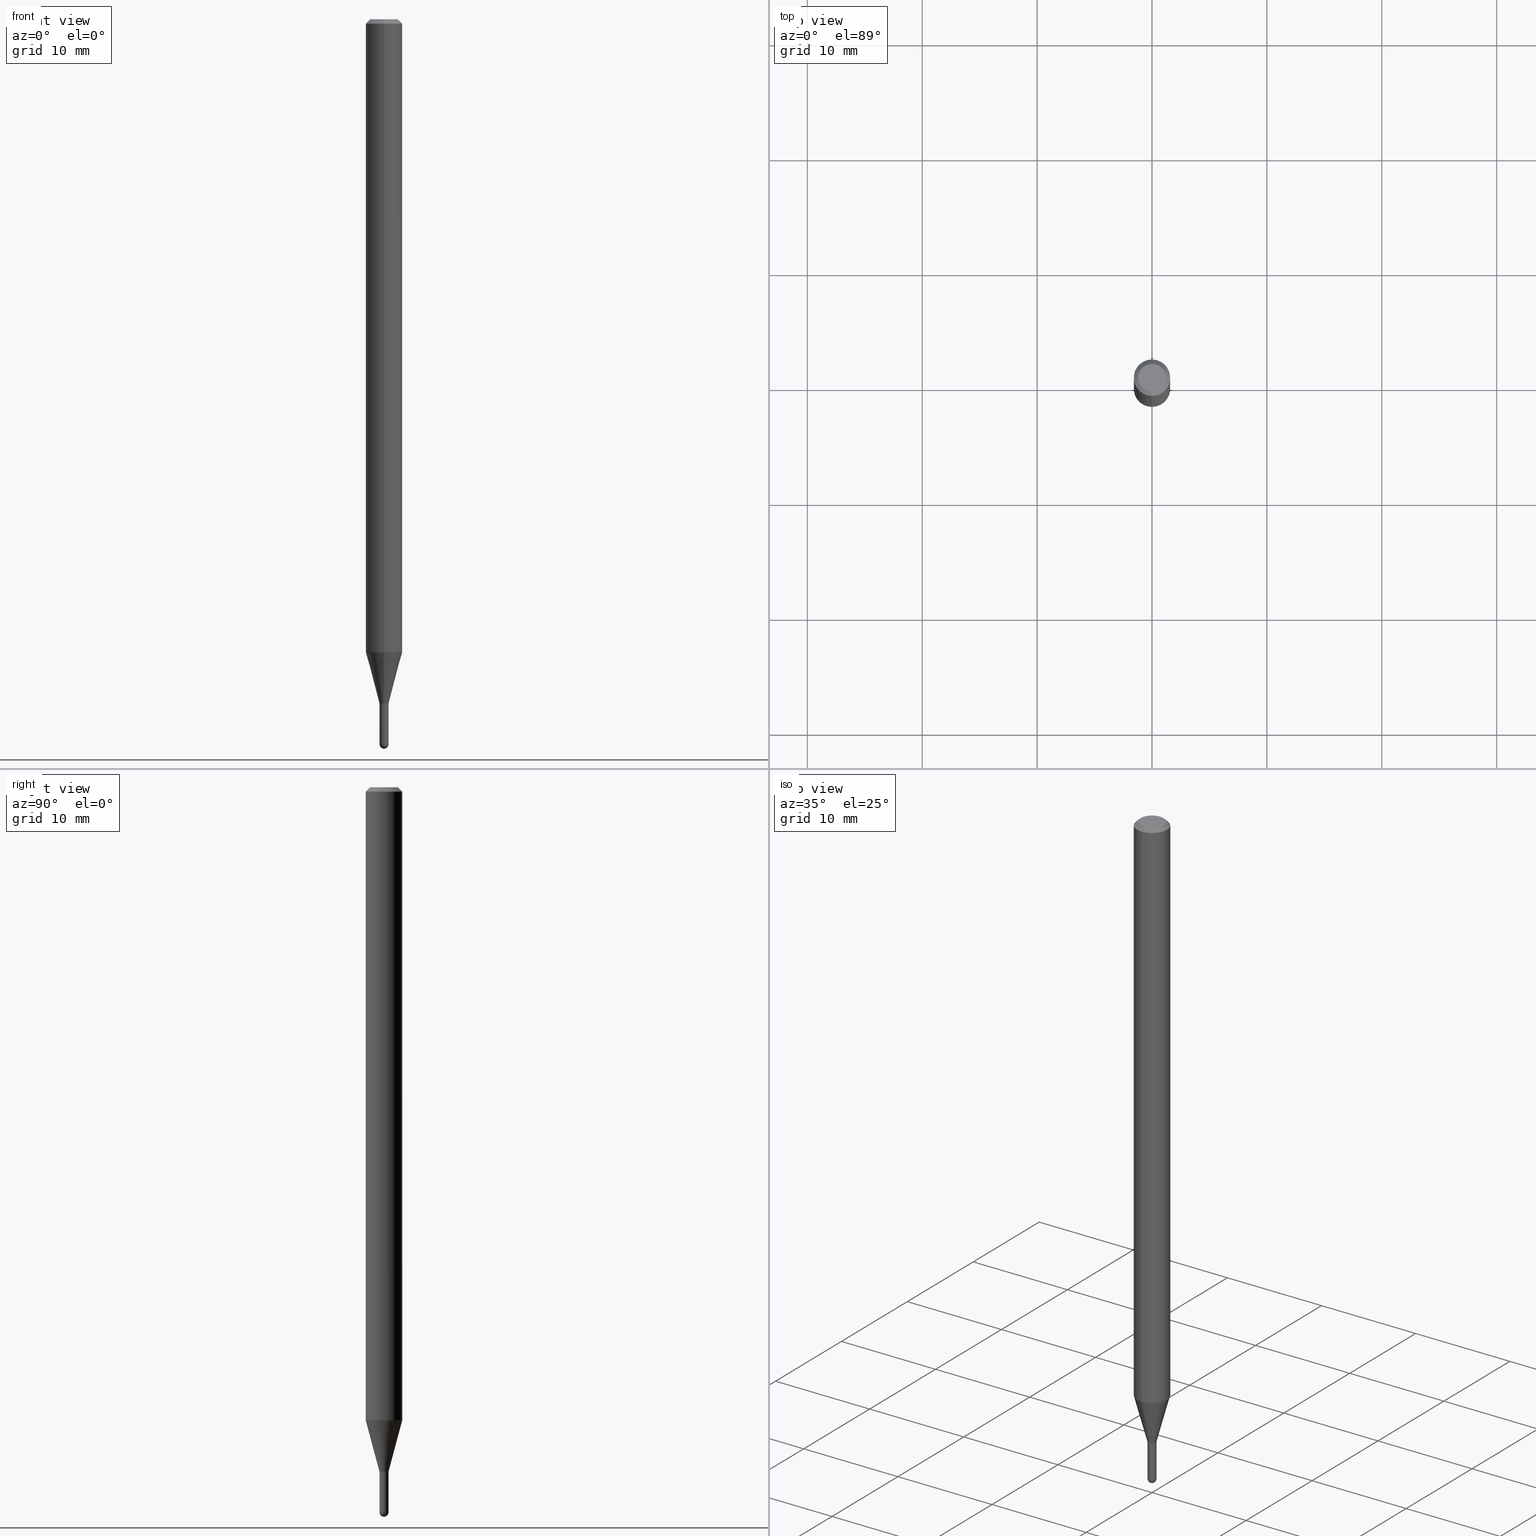
[diagram: canonical four-view strip — front | top / right | iso, engineering-drawing reading convention]
A machine part, canonical four-view strip (front | top / right | iso — engineering-drawing reading convention). The complete STEP part file that produces these views, byte-faithful:
ISO-10303-21;
HEADER;
FILE_DESCRIPTION (( 'STEP AP203' ),
    '1' );
FILE_NAME ('01504.STEP',
    '2024-03-07T19:35:42',
    ( '' ),
    ( '' ),
    'SwSTEP 2.0',
    'SolidWorks 2023',
    '' );
FILE_SCHEMA (( 'CONFIG_CONTROL_DESIGN' ));
ENDSEC;

DATA;
#1 = CLOSED_SHELL ( 'NONE', ( #121, #383, #426, #209, #110, #149, #332, #140, #301, #115, #364, #93 ) ) ;
#2 = DIRECTION ( 'NONE',  ( -6.982962677686265922E-15, -1.000000000000000000, 0.000000000000000000 ) ) ;
#3 = DIRECTION ( 'NONE',  ( -2.445469388235828600E-29, 3.491480505313426266E-15, 1.000000000000000000 ) ) ;
#4 = DIRECTION ( 'NONE',  ( 4.937700262164548042E-15, 0.7071067811865451302, -0.7071067811865499042 ) ) ;
#5 = VERTEX_POINT ( 'NONE', #294 ) ;
#6 = DIRECTION ( 'NONE',  ( -2.445469388235828600E-29, 3.491480505313426266E-15, 1.000000000000000000 ) ) ;
#7 = VECTOR ( 'NONE', #395, 39.37007874015748143 ) ;
#8 = CYLINDRICAL_SURFACE ( 'NONE', #306, 0.06250000000000000000 ) ;
#9 = ORIENTED_EDGE ( 'NONE', *, *, #347, .T. ) ;
#10 = COORDINATED_UNIVERSAL_TIME_OFFSET ( 5, 0, .BEHIND. ) ;
#11 = ORIENTED_EDGE ( 'NONE', *, *, #88, .T. ) ;
#12 = MANIFOLD_SOLID_BREP ( 'Body-Move/Copy2[1]', #277 ) ;
#13 = CC_DESIGN_APPROVAL ( #495, ( #64 ) ) ;
#14 = ORIENTED_EDGE ( 'NONE', *, *, #377, .T. ) ;
#15 = ADVANCED_FACE ( 'NONE', ( #419 ), #254, .T. ) ;
#16 = CIRCLE ( 'NONE', #206, 0.01549999999999999989 ) ;
#17 = PERSON_AND_ORGANIZATION ( #235, #80 ) ;
#18 = AXIS2_PLACEMENT_3D ( 'NONE', #236, #94, #242 ) ;
#19 = ORIENTED_EDGE ( 'NONE', *, *, #446, .F. ) ;
#20 = APPROVAL_DATE_TIME ( #141, #238 ) ;
#21 = DIRECTION ( 'NONE',  ( -2.445468806185136597E-29, 3.491481338843145583E-15, 1.000000000000000000 ) ) ;
#22 = PERSON_AND_ORGANIZATION_ROLE ( 'design_supplier' ) ;
#23 = EDGE_LOOP ( 'NONE', ( #66, #447 ) ) ;
#24 = EDGE_CURVE ( 'NONE', #5, #57, #463, .T. ) ;
#25 = SECURITY_CLASSIFICATION_LEVEL ( 'unclassified' ) ;
#26 = CONICAL_SURFACE ( 'NONE', #45, 0.01549999999999965121, 0.2617993877991576235 ) ;
#27 = CARTESIAN_POINT ( 'NONE',  ( 5.734625715413019082E-29, -8.187521784959985664E-15, -2.345000000000000195 ) ) ;
#28 = DATE_AND_TIME ( #299, #220 ) ;
#29 = DIRECTION ( 'NONE',  ( -6.982962677686265922E-15, -1.000000000000000000, 0.000000000000000000 ) ) ;
#30 = DIRECTION ( 'NONE',  ( -7.105427357601001070E-15, -1.000000000000000000, 0.000000000000000000 ) ) ;
#31 = DIRECTION ( 'NONE',  ( -6.982962677686265922E-15, -1.000000000000000000, 3.491480505313426266E-15 ) ) ;
#32 = FACE_OUTER_BOUND ( 'NONE', #454, .T. ) ;
#33 = CARTESIAN_POINT ( 'NONE',  ( -3.773273898774340269E-16, -0.04749999999999999362, 1.569849648178949925E-16 ) ) ;
#34 = VECTOR ( 'NONE', #300, 39.37007874015748143 ) ;
#35 = LENGTH_MEASURE_WITH_UNIT ( LENGTH_MEASURE( 0.02539999999999999897 ), #272 );
#36 = DIRECTION ( 'NONE',  ( -2.445469388235828600E-29, 3.491480505313426266E-15, 1.000000000000000000 ) ) ;
#37 = CARTESIAN_POINT ( 'NONE',  ( 0.01549999999999999989, -8.295759661091313125E-15, -2.345000000000000195 ) ) ;
#38 = DIRECTION ( 'NONE',  ( 1.000000000000000000, -6.982962677686299843E-15, 0.000000000000000000 ) ) ;
#39 = ORIENTED_EDGE ( 'NONE', *, *, #67, .T. ) ;
#40 = FACE_OUTER_BOUND ( 'NONE', #104, .T. ) ;
#41 = DIRECTION ( 'NONE',  ( 5.024295867790934632E-15, 0.7071067811869542474, 0.7071067811861405650 ) ) ;
#42 = AXIS2_PLACEMENT_3D ( 'NONE', #285, #232, #322 ) ;
#43 = CIRCLE ( 'NONE', #111, 0.06250000000000000000 ) ;
#44 = ORIENTED_EDGE ( 'NONE', *, *, #223, .T. ) ;
#45 = AXIS2_PLACEMENT_3D ( 'NONE', #390, #190, #71 ) ;
#46 = LINE ( 'NONE', #92, #505 ) ;
#47 = EDGE_CURVE ( 'NONE', #172, #101, #433, .T. ) ;
#48 = MECHANICAL_CONTEXT ( 'NONE', #477, 'mechanical' ) ;
#49 = DIRECTION ( 'NONE',  ( -2.445469388235828600E-29, 3.491480505313426266E-15, 1.000000000000000000 ) ) ;
#50 = ORIENTED_EDGE ( 'NONE', *, *, #293, .T. ) ;
#51 = EDGE_CURVE ( 'NONE', #138, #422, #381, .T. ) ;
#52 = DIRECTION ( 'NONE',  ( 0.000000000000000000, 0.000000000000000000, 1.000000000000000000 ) ) ;
#53 = DIRECTION ( 'NONE',  ( -2.445469388235828600E-29, 3.491480505313426266E-15, 1.000000000000000000 ) ) ;
#54 = AXIS2_PLACEMENT_3D ( 'NONE', #394, #229, #30 ) ;
#55 = AXIS2_PLACEMENT_3D ( 'NONE', #215, #21, #180 ) ;
#56 = APPROVAL_DATE_TIME ( #412, #495 ) ;
#57 = VERTEX_POINT ( 'NONE', #468 ) ;
#58 = DATE_AND_TIME ( #173, #153 ) ;
#59 = ORIENTED_EDGE ( 'NONE', *, *, #439, .F. ) ;
#60 = CC_DESIGN_PERSON_AND_ORGANIZATION_ASSIGNMENT ( #375, #423, ( #72 ) ) ;
#61 = VERTEX_POINT ( 'NONE', #33 ) ;
#62 = COORDINATED_UNIVERSAL_TIME_OFFSET ( 5, 0, .BEHIND. ) ;
#63 = ORIENTED_EDGE ( 'NONE', *, *, #51, .F. ) ;
#64 = PRODUCT_DEFINITION ( 'UNKNOWN', '', #72, #479 ) ;
#65 = APPROVAL_ROLE ( '' ) ;
#66 = ORIENTED_EDGE ( 'NONE', *, *, #47, .F. ) ;
#67 = EDGE_CURVE ( 'NONE', #369, #201, #120, .T. ) ;
#68 = PLANE ( 'NONE',  #450 ) ;
#69 = VECTOR ( 'NONE', #164, 39.37007874015748854 ) ;
#70 = CONICAL_SURFACE ( 'NONE', #355, 0.01499999999999999944, 0.7853981633980202659 ) ;
#71 = DIRECTION ( 'NONE',  ( -6.982962677686265922E-15, -1.000000000000000000, 0.000000000000000000 ) ) ;
#72 = PRODUCT_DEFINITION_FORMATION_WITH_SPECIFIED_SOURCE ( 'ANY', '', #385, .NOT_KNOWN. ) ;
#73 = EDGE_CURVE ( 'NONE', #422, #165, #208, .T. ) ;
#74 = DIRECTION ( 'NONE',  ( -2.445469388235828600E-29, 3.491480505313426266E-15, 1.000000000000000000 ) ) ;
#75 = DIRECTION ( 'NONE',  ( -2.445469388235828600E-29, 3.491480505313426266E-15, 1.000000000000000000 ) ) ;
#76 = CARTESIAN_POINT ( 'NONE',  ( 3.668204082353745160E-31, -5.237220757970142554E-17, -0.01500000000000000812 ) ) ;
#77 = AXIS2_PLACEMENT_3D ( 'NONE', #469, #85, #192 ) ;
#78 = DIRECTION ( 'NONE',  ( -2.445469388235828600E-29, 3.491480505313426266E-15, 1.000000000000000000 ) ) ;
#79 = DIRECTION ( 'NONE',  ( -2.445468806185136597E-29, 3.491481338843145583E-15, 1.000000000000000000 ) ) ;
#80 = ORGANIZATION ( 'UNSPECIFIED', 'UNSPECIFIED', '' ) ;
#81 = CARTESIAN_POINT ( 'NONE',  ( 5.734625715413017961E-29, -8.187521784959985664E-15, -2.345000000000000195 ) ) ;
#82 = CARTESIAN_POINT ( 'NONE',  ( 4.440892098501160615E-16, 0.06249999999999995837, -0.01500000000000022669 ) ) ;
#83 = ORIENTED_EDGE ( 'NONE', *, *, #329, .T. ) ;
#84 = CC_DESIGN_DATE_AND_TIME_ASSIGNMENT ( #58, #211, ( #64 ) ) ;
#85 = DIRECTION ( 'NONE',  ( 2.445469388235828600E-29, -3.491480505313426266E-15, -1.000000000000000000 ) ) ;
#86 = DIRECTION ( 'NONE',  ( -2.445469388235828600E-29, 3.491480505313426266E-15, 1.000000000000000000 ) ) ;
#87 = ORIENTED_EDGE ( 'NONE', *, *, #264, .F. ) ;
#88 = EDGE_CURVE ( 'NONE', #5, #482, #392, .T. ) ;
#89 = LINE ( 'NONE', #245, #331 ) ;
#90 = CIRCLE ( 'NONE', #128, 0.01550000000000019765 ) ;
#91 = CIRCLE ( 'NONE', #103, 0.01550000000000000336 ) ;
#92 = CARTESIAN_POINT ( 'NONE',  ( -1.082359215041365986E-16, -0.01549999999999992530, 5.411794783235784596E-17 ) ) ;
#93 = ADVANCED_FACE ( 'NONE', ( #430 ), #219, .F. ) ;
#94 = DIRECTION ( 'NONE',  ( -2.445469388235828600E-29, 3.491480505313426266E-15, 1.000000000000000000 ) ) ;
#95 = CIRCLE ( 'NONE', #449, 0.06250000000000000000 ) ;
#96 = ORIENTED_EDGE ( 'NONE', *, *, #347, .F. ) ;
#97 = VECTOR ( 'NONE', #41, 39.37007874015748854 ) ;
#98 = VERTEX_POINT ( 'NONE', #186 ) ;
#99 = EDGE_CURVE ( 'NONE', #165, #369, #352, .T. ) ;
#100 = DATE_TIME_ROLE ( 'classification_date' ) ;
#101 = VERTEX_POINT ( 'NONE', #384 ) ;
#102 = EDGE_LOOP ( 'NONE', ( #489, #251, #330, #363 ) ) ;
#103 = AXIS2_PLACEMENT_3D ( 'NONE', #157, #440, #38 ) ;
#104 = EDGE_LOOP ( 'NONE', ( #213, #244, #451, #420 ) ) ;
#105 = APPROVAL_DATE_TIME ( #28, #499 ) ;
#106 = CARTESIAN_POINT ( 'NONE',  ( 6.075767248966972494E-29, -8.674585386355795965E-15, -2.484500000000000153 ) ) ;
#107 = AXIS2_PLACEMENT_3D ( 'NONE', #266, #189, #122 ) ;
#108 = APPROVAL_ROLE ( '' ) ;
#109 = DIRECTION ( 'NONE',  ( -6.982962677686265922E-15, -1.000000000000000000, 3.491480505313426266E-15 ) ) ;
#110 = ADVANCED_FACE ( 'NONE', ( #457 ), #413, .T. ) ;
#111 = AXIS2_PLACEMENT_3D ( 'NONE', #481, #203, #168 ) ;
#112 = DIRECTION ( 'NONE',  ( 2.438088387897960049E-29, -3.491481338843145188E-15, -1.000000000000000000 ) ) ;
#113 = CARTESIAN_POINT ( 'NONE',  ( 6.074441741218743853E-29, -8.676483588894474032E-15, -2.484500000000000153 ) ) ;
#114 = CIRCLE ( 'NONE', #310, 0.04749999999999999362 ) ;
#115 = ADVANCED_FACE ( 'NONE', ( #258 ), #68, .F. ) ;
#116 = CARTESIAN_POINT ( 'NONE',  ( -1.082359215040773354E-16, -0.01550000000000783910, -2.345000000000000195 ) ) ;
#117 = CARTESIAN_POINT ( 'NONE',  ( 5.734625715413017961E-29, -8.187521784959985664E-15, -2.345000000000000195 ) ) ;
#118 = CARTESIAN_POINT ( 'NONE',  ( 1.101341240428149734E-16, 0.01549999999999992530, -5.411794783235784596E-17 ) ) ;
#119 = CARTESIAN_POINT ( 'NONE',  ( 5.733402980718901253E-29, -8.185776044707329632E-15, -2.344500000000000473 ) ) ;
#120 = CIRCLE ( 'NONE', #161, 0.01549999999999999989 ) ;
#121 = ADVANCED_FACE ( 'NONE', ( #185 ), #340, .F. ) ;
#122 = DIRECTION ( 'NONE',  ( -6.982962677686265922E-15, -1.000000000000000000, 0.000000000000000000 ) ) ;
#123 = CARTESIAN_POINT ( 'NONE',  ( 5.734624350504145902E-29, -8.187523739587176748E-15, -2.345000000000000195 ) ) ;
#124 = APPROVAL_STATUS ( 'not_yet_approved' ) ;
#125 = DIRECTION ( 'NONE',  ( 1.839019923739650408E-15, 0.2588190451025320082, 0.9659258262890650926 ) ) ;
#126 = VERTEX_POINT ( 'NONE', #152 ) ;
#127 = CARTESIAN_POINT ( 'NONE',  ( 3.316907271900976096E-16, 0.04749999999999999362, -1.702755035946341149E-16 ) ) ;
#128 = AXIS2_PLACEMENT_3D ( 'NONE', #119, #86, #287 ) ;
#129 = ORIENTED_EDGE ( 'NONE', *, *, #223, .F. ) ;
#130 = AXIS2_PLACEMENT_3D ( 'NONE', #250, #52, #405 ) ;
#131 = APPLICATION_PROTOCOL_DEFINITION ( 'international standard', 'config_control_design', 1994, #477 ) ;
#132 = FACE_OUTER_BOUND ( 'NONE', #367, .T. ) ;
#133 = COORDINATED_UNIVERSAL_TIME_OFFSET ( 5, 0, .BEHIND. ) ;
#134 = DIRECTION ( 'NONE',  ( -2.445469388235828600E-29, 3.491480505313426266E-15, 1.000000000000000000 ) ) ;
#135 = PERSON_AND_ORGANIZATION ( #235, #80 ) ;
#136 = ORIENTED_EDGE ( 'NONE', *, *, #99, .T. ) ;
#137 = CC_DESIGN_PERSON_AND_ORGANIZATION_ASSIGNMENT ( #492, #184, ( #319 ) ) ;
#138 = VERTEX_POINT ( 'NONE', #261 ) ;
#139 = LOCAL_TIME ( 14, 35, 42.00000000000000000, #342 ) ;
#140 = ADVANCED_FACE ( 'NONE', ( #148 ), #442, .T. ) ;
#141 = DATE_AND_TIME ( #334, #302 ) ;
#142 = EDGE_LOOP ( 'NONE', ( #456, #19, #144, #378 ) ) ;
#143 = ADVANCED_FACE ( 'NONE', ( #465 ), #305, .T. ) ;
#144 = ORIENTED_EDGE ( 'NONE', *, *, #176, .T. ) ;
#145 = DIRECTION ( 'NONE',  ( 1.000000000000000000, -6.982962677686299843E-15, 0.000000000000000000 ) ) ;
#146 = CARTESIAN_POINT ( 'NONE',  ( 5.734624350504145902E-29, -8.187523739587176748E-15, -2.345000000000000195 ) ) ;
#147 = DATE_AND_TIME ( #500, #139 ) ;
#148 = FACE_OUTER_BOUND ( 'NONE', #493, .T. ) ;
#149 = ADVANCED_FACE ( 'NONE', ( #508 ), #26, .T. ) ;
#150 = DIRECTION ( 'NONE',  ( -1.807323732225379838E-15, -0.2588190451025252914, 0.9659258262890670910 ) ) ;
#151 = AXIS2_PLACEMENT_3D ( 'NONE', #193, #343, #504 ) ;
#152 = CARTESIAN_POINT ( 'NONE',  ( 6.113009261588727732E-29, -8.729652448377203187E-15, -2.500000000000000000 ) ) ;
#153 = LOCAL_TIME ( 14, 35, 42.00000000000000000, #10 ) ;
#154 = CC_DESIGN_PERSON_AND_ORGANIZATION_ASSIGNMENT ( #135, #162, ( #385 ) ) ;
#155 = CARTESIAN_POINT ( 'NONE',  ( 6.074441741218743853E-29, -8.676483588894474032E-15, -2.484500000000000153 ) ) ;
#156 = DIRECTION ( 'NONE',  ( -6.982962677686266711E-15, -1.000000000000000000, 0.000000000000000000 ) ) ;
#157 = CARTESIAN_POINT ( 'NONE',  ( 6.075767248966972494E-29, -8.674585386355795965E-15, -2.484500000000000153 ) ) ;
#158 = CIRCLE ( 'NONE', #107, 0.01549999999999965121 ) ;
#159 = DIRECTION ( 'NONE',  ( -4.851104656540964275E-15, -0.7071067811865500152, -0.7071067811865450192 ) ) ;
#160 = CYLINDRICAL_SURFACE ( 'NONE', #472, 0.01550000000000000162 ) ;
#161 = AXIS2_PLACEMENT_3D ( 'NONE', #146, #79, #230 ) ;
#162 = PERSON_AND_ORGANIZATION_ROLE ( 'design_owner' ) ;
#163 = APPROVAL_PERSON_ORGANIZATION ( #17, #238, #65 ) ;
#164 = DIRECTION ( 'NONE',  ( -4.937700262167370586E-15, -0.7071067811869493624, 0.7071067811861454500 ) ) ;
#165 = VERTEX_POINT ( 'NONE', #387 ) ;
#166 = CARTESIAN_POINT ( 'NONE',  ( 5.305674763166256692E-29, -7.575093800905100250E-15, -2.169593612044267594 ) ) ;
#167 = ORIENTED_EDGE ( 'NONE', *, *, #51, .T. ) ;
#168 = DIRECTION ( 'NONE',  ( -6.982962677686265922E-15, -1.000000000000000000, 3.483106191921935554E-15 ) ) ;
#169 = ORIENTED_EDGE ( 'NONE', *, *, #67, .F. ) ;
#170 = EDGE_CURVE ( 'NONE', #233, #482, #200, .T. ) ;
#171 = DIRECTION ( 'NONE',  ( -2.445468806185136597E-29, 3.491481338843145583E-15, 1.000000000000000000 ) ) ;
#172 = VERTEX_POINT ( 'NONE', #205 ) ;
#173 = CALENDAR_DATE ( 2024, 7, 3 ) ;
#174 = ORIENTED_EDGE ( 'NONE', *, *, #199, .T. ) ;
#175 = ORIENTED_EDGE ( 'NONE', *, *, #176, .F. ) ;
#176 = EDGE_CURVE ( 'NONE', #57, #233, #46, .T. ) ;
#177 = AXIS2_PLACEMENT_3D ( 'NONE', #155, #348, #351 ) ;
#178 = APPROVAL_STATUS ( 'not_yet_approved' ) ;
#179 = ORIENTED_EDGE ( 'NONE', *, *, #227, .T. ) ;
#180 = DIRECTION ( 'NONE',  ( 1.000000000000000000, -6.982962677686266711E-15, 4.876176775795935232E-29 ) ) ;
#181 = APPROVAL_PERSON_ORGANIZATION ( #438, #495, #204 ) ;
#182 = ORIENTED_EDGE ( 'NONE', *, *, #359, .T. ) ;
#183 = AXIS2_PLACEMENT_3D ( 'NONE', #127, #445, #195 ) ;
#184 = PERSON_AND_ORGANIZATION_ROLE ( 'classification_officer' ) ;
#185 = FACE_OUTER_BOUND ( 'NONE', #255, .T. ) ;
#186 = CARTESIAN_POINT ( 'NONE',  ( -4.364351673553912750E-16, -0.06250000000000005551, -0.01499999999999979128 ) ) ;
#187 = CARTESIAN_POINT ( 'NONE',  ( 2.166773715445121062E-46, -3.093577136273123106E-32, -8.860359184492759044E-18 ) ) ;
#188 = DIRECTION ( 'NONE',  ( -2.445469388235828600E-29, 3.491480505313426266E-15, 1.000000000000000000 ) ) ;
#189 = DIRECTION ( 'NONE',  ( -2.445469388235828600E-29, 3.491480505313426266E-15, 1.000000000000000000 ) ) ;
#190 = DIRECTION ( 'NONE',  ( -2.445469388235828600E-29, 3.491480505313426266E-15, 1.000000000000000000 ) ) ;
#191 = CC_DESIGN_APPROVAL ( #238, ( #319 ) ) ;
#192 = DIRECTION ( 'NONE',  ( 6.982962677686265922E-15, 1.000000000000000000, -3.483106191921935554E-15 ) ) ;
#193 = CARTESIAN_POINT ( 'NONE',  ( 0.000000000000000000, 0.000000000000000000, 0.000000000000000000 ) ) ;
#194 = DIRECTION ( 'NONE',  ( -2.445469388235828600E-29, 3.491480505313426266E-15, 1.000000000000000000 ) ) ;
#195 = DIRECTION ( 'NONE',  ( 6.982962677686265922E-15, 1.000000000000000000, -3.491480505313426266E-15 ) ) ;
#196 = ORIENTED_EDGE ( 'NONE', *, *, #344, .F. ) ;
#197 = LINE ( 'NONE', #116, #291 ) ;
#198 = DIRECTION ( 'NONE',  ( -6.982962677686265922E-15, -1.000000000000000000, 4.370956789862821150E-15 ) ) ;
#199 = EDGE_CURVE ( 'NONE', #417, #281, #89, .T. ) ;
#200 = CIRCLE ( 'NONE', #325, 0.01550000000000019765 ) ;
#201 = VERTEX_POINT ( 'NONE', #280 ) ;
#202 = DIRECTION ( 'NONE',  ( -6.982962677686265922E-15, -1.000000000000000000, 4.370956789862821150E-15 ) ) ;
#203 = DIRECTION ( 'NONE',  ( -2.445469388235828600E-29, 3.491480505313426266E-15, 1.000000000000000000 ) ) ;
#204 = APPROVAL_ROLE ( '' ) ;
#205 = CARTESIAN_POINT ( 'NONE',  ( -1.047444401652366332E-16, -0.01500000000000818734, -2.345000000000000195 ) ) ;
#206 = AXIS2_PLACEMENT_3D ( 'NONE', #123, #171, #366 ) ;
#207 = EDGE_LOOP ( 'NONE', ( #338, #297, #407, #484 ) ) ;
#208 = CIRCLE ( 'NONE', #455, 0.01550000000000000336 ) ;
#209 = ADVANCED_FACE ( 'NONE', ( #315 ), #282, .T. ) ;
#210 = ORIENTED_EDGE ( 'NONE', *, *, #403, .F. ) ;
#211 = DATE_TIME_ROLE ( 'creation_date' ) ;
#212 = ORIENTED_EDGE ( 'NONE', *, *, #288, .T. ) ;
#213 = ORIENTED_EDGE ( 'NONE', *, *, #243, .F. ) ;
#214 = AXIS2_PLACEMENT_3D ( 'NONE', #76, #425, #311 ) ;
#215 = CARTESIAN_POINT ( 'NONE',  ( 0.000000000000000000, 0.000000000000000000, 0.000000000000000000 ) ) ;
#216 = VERTEX_POINT ( 'NONE', #483 ) ;
#217 = DIRECTION ( 'NONE',  ( -2.445469388235828600E-29, 3.491480505313426266E-15, 1.000000000000000000 ) ) ;
#218 = VECTOR ( 'NONE', #194, 39.37007874015748143 ) ;
#219 = CYLINDRICAL_SURFACE ( 'NONE', #151, 0.01549999999999992530 ) ;
#220 = LOCAL_TIME ( 14, 35, 42.00000000000000000, #260 ) ;
#221 = PRODUCT_DEFINITION_SHAPE ( 'NONE', 'NONE',  #64 ) ;
#222 = LINE ( 'NONE', #353, #494 ) ;
#223 = EDGE_CURVE ( 'NONE', #248, #138, #91, .T. ) ;
#224 = DIRECTION ( 'NONE',  ( 6.982962677686265922E-15, 1.000000000000000000, 0.000000000000000000 ) ) ;
#225 = FACE_OUTER_BOUND ( 'NONE', #286, .T. ) ;
#226 = DIRECTION ( 'NONE',  ( -2.445469388235828600E-29, 3.491480505313426266E-15, 1.000000000000000000 ) ) ;
#227 = EDGE_CURVE ( 'NONE', #138, #201, #278, .T. ) ;
#228 = CIRCLE ( 'NONE', #471, 0.06250000000000000000 ) ;
#229 = DIRECTION ( 'NONE',  ( -1.000000000000000000, 7.105427357601001070E-15, -4.926315508542082329E-29 ) ) ;
#230 = DIRECTION ( 'NONE',  ( 1.000000000000000000, -6.982962677686238312E-15, 0.000000000000000000 ) ) ;
#231 =( NAMED_UNIT ( * ) PLANE_ANGLE_UNIT ( ) SI_UNIT ( $, .RADIAN. ) );
#232 = DIRECTION ( 'NONE',  ( 1.000000000000000000, -6.982962677686265922E-15, 4.883557194083112340E-29 ) ) ;
#233 = VERTEX_POINT ( 'NONE', #470 ) ;
#234 = CARTESIAN_POINT ( 'NONE',  ( 1.082359215041944689E-16, 0.01549999999999181199, -2.345000000000000195 ) ) ;
#235 = PERSON ( 'UNSPECIFIED', 'UNSPECIFIED', 'UNSPECIFIED', ('UNSPECIFIED'), ('UNSPECIFIED'), ('UNSPECIFIED') ) ;
#236 = CARTESIAN_POINT ( 'NONE',  ( 0.000000000000000000, 0.000000000000000000, 0.000000000000000000 ) ) ;
#237 = EDGE_CURVE ( 'NONE', #101, #172, #298, .T. ) ;
#238 = APPROVAL ( #178, 'UNSPECIFIED' ) ;
#239 = CARTESIAN_POINT ( 'NONE',  ( -1.047444401652366332E-16, -0.01500000000000818734, -2.345000000000000195 ) ) ;
#240 = EDGE_LOOP ( 'NONE', ( #283, #360, #14, #87 ) ) ;
#241 = CC_DESIGN_SECURITY_CLASSIFICATION ( #319, ( #72 ) ) ;
#242 = DIRECTION ( 'NONE',  ( -6.982962677686265922E-15, -1.000000000000000000, 3.491480505313426266E-15 ) ) ;
#243 = EDGE_CURVE ( 'NONE', #101, #482, #365, .T. ) ;
#244 = ORIENTED_EDGE ( 'NONE', *, *, #237, .T. ) ;
#245 = CARTESIAN_POINT ( 'NONE',  ( 4.364351673553919652E-16, 0.06249999999999995143, -0.01500000000000022669 ) ) ;
#246 = ORIENTED_EDGE ( 'NONE', *, *, #486, .T. ) ;
#247 = CALENDAR_DATE ( 2024, 7, 3 ) ;
#248 = VERTEX_POINT ( 'NONE', #510 ) ;
#249 = AXIS2_PLACEMENT_3D ( 'NONE', #113, #268, #224 ) ;
#250 = CARTESIAN_POINT ( 'NONE',  ( 0.000000000000000000, 0.000000000000000000, 0.000000000000000000 ) ) ;
#251 = ORIENTED_EDGE ( 'NONE', *, *, #243, .T. ) ;
#252 = EDGE_CURVE ( 'NONE', #417, #61, #114, .T. ) ;
#253 = EDGE_LOOP ( 'NONE', ( #476, #167, #373, #136, #480 ) ) ;
#254 = CYLINDRICAL_SURFACE ( 'NONE', #55, 0.01550000000000000162 ) ;
#255 = EDGE_LOOP ( 'NONE', ( #491, #11, #290, #175 ) ) ;
#256 = EDGE_CURVE ( 'NONE', #482, #233, #90, .T. ) ;
#257 = PERSON_AND_ORGANIZATION ( #235, #80 ) ;
#258 = FACE_OUTER_BOUND ( 'NONE', #23, .T. ) ;
#259 = EDGE_CURVE ( 'NONE', #216, #335, #228, .T. ) ;
#260 = COORDINATED_UNIVERSAL_TIME_OFFSET ( 5, 0, .BEHIND. ) ;
#261 = CARTESIAN_POINT ( 'NONE',  ( -0.01550000000000000509, -8.320920438928671125E-15, -2.484500000000000153 ) ) ;
#262 = CIRCLE ( 'NONE', #42, 0.01549999999999993917 ) ;
#263 = AXIS2_PLACEMENT_3D ( 'NONE', #187, #345, #464 ) ;
#264 = EDGE_CURVE ( 'NONE', #335, #216, #95, .T. ) ;
#265 = AXIS2_PLACEMENT_3D ( 'NONE', #106, #380, #313 ) ;
#266 = CARTESIAN_POINT ( 'NONE',  ( 5.734625715413019082E-29, -8.187521784959985664E-15, -2.345000000000000195 ) ) ;
#267 = AXIS2_PLACEMENT_3D ( 'NONE', #406, #53, #443 ) ;
#268 = DIRECTION ( 'NONE',  ( -1.000000000000000000, 6.982962677686265922E-15, -4.883557194083112340E-29 ) ) ;
#269 = CARTESIAN_POINT ( 'NONE',  ( -1.101341240427545639E-16, -0.01550000000000864749, -2.484500000000000153 ) ) ;
#270 = EDGE_CURVE ( 'NONE', #172, #233, #434, .T. ) ;
#271 = CARTESIAN_POINT ( 'NONE',  ( 5.733402980718901253E-29, -8.185776044707329632E-15, -2.344500000000000473 ) ) ;
#272 =( LENGTH_UNIT ( ) NAMED_UNIT ( * ) SI_UNIT ( $, .METRE. ) );
#273 = DIRECTION ( 'NONE',  ( -2.445468806185136597E-29, 3.491481338843145583E-15, 1.000000000000000000 ) ) ;
#274 = CIRCLE ( 'NONE', #54, 0.01549999999999993917 ) ;
#275 = CONICAL_SURFACE ( 'NONE', #77, 0.06250000000000000000, 0.7853981633974483900 ) ;
#276 = SPHERICAL_SURFACE ( 'NONE', #177, 0.01549999999999993917 ) ;
#277 = CLOSED_SHELL ( 'NONE', ( #15, #336, #502, #143, #324 ) ) ;
#278 = LINE ( 'NONE', #398, #7 ) ;
#279 = CARTESIAN_POINT ( 'NONE',  ( 3.840629472727447874E-16, 0.04749999999999999362, -1.747056831868805136E-16 ) ) ;
#280 = CARTESIAN_POINT ( 'NONE',  ( -0.01549999999999999989, -8.320920438928671125E-15, -2.345000000000000195 ) ) ;
#281 = VERTEX_POINT ( 'NONE', #82 ) ;
#282 = CYLINDRICAL_SURFACE ( 'NONE', #18, 0.06250000000000000000 ) ;
#283 = ORIENTED_EDGE ( 'NONE', *, *, #307, .F. ) ;
#284 = DIRECTION ( 'NONE',  ( -6.982962677686265922E-15, -1.000000000000000000, 3.491480505313426266E-15 ) ) ;
#285 = CARTESIAN_POINT ( 'NONE',  ( 6.074441741218743853E-29, -8.676483588894474032E-15, -2.484500000000000153 ) ) ;
#286 = EDGE_LOOP ( 'NONE', ( #497, #182, #63, #129 ) ) ;
#287 = DIRECTION ( 'NONE',  ( -6.982962677686266711E-15, -1.000000000000000000, 0.000000000000000000 ) ) ;
#288 = EDGE_CURVE ( 'NONE', #126, #248, #262, .T. ) ;
#289 = ORIENTED_EDGE ( 'NONE', *, *, #252, .T. ) ;
#290 = ORIENTED_EDGE ( 'NONE', *, *, #256, .T. ) ;
#291 = VECTOR ( 'NONE', #150, 39.37007874015748143 ) ;
#292 = ORIENTED_EDGE ( 'NONE', *, *, #73, .F. ) ;
#293 = EDGE_CURVE ( 'NONE', #98, #281, #43, .T. ) ;
#294 = CARTESIAN_POINT ( 'NONE',  ( 2.771116669464931584E-16, 0.01549999999999146505, -2.345000000000000195 ) ) ;
#295 = SHAPE_DEFINITION_REPRESENTATION ( #221, #401 ) ;
#296 = ORIENTED_EDGE ( 'NONE', *, *, #252, .F. ) ;
#297 = ORIENTED_EDGE ( 'NONE', *, *, #307, .T. ) ;
#298 = CIRCLE ( 'NONE', #267, 0.01499999999999999944 ) ;
#299 = CALENDAR_DATE ( 2024, 7, 3 ) ;
#300 = DIRECTION ( 'NONE',  ( -2.445468806185136877E-29, 3.491481338843145188E-15, 1.000000000000000000 ) ) ;
#301 = ADVANCED_FACE ( 'NONE', ( #132 ), #326, .F. ) ;
#302 = LOCAL_TIME ( 14, 35, 42.00000000000000000, #62 ) ;
#303 = DIRECTION ( 'NONE',  ( -2.445469388235828600E-29, 3.491480505313426266E-15, 1.000000000000000000 ) ) ;
#304 = DIRECTION ( 'NONE',  ( -6.982962677686265922E-15, -1.000000000000000000, 3.483106191921935554E-15 ) ) ;
#305 = SPHERICAL_SURFACE ( 'NONE', #249, 0.01549999999999993917 ) ;
#306 = AXIS2_PLACEMENT_3D ( 'NONE', #485, #134, #284 ) ;
#307 = EDGE_CURVE ( 'NONE', #5, #335, #354, .T. ) ;
#308 = AXIS2_PLACEMENT_3D ( 'NONE', #427, #217, #346 ) ;
#309 = CARTESIAN_POINT ( 'NONE',  ( 3.668204082353745160E-31, -5.237220757970142554E-17, -0.01500000000000000812 ) ) ;
#310 = AXIS2_PLACEMENT_3D ( 'NONE', #478, #49, #321 ) ;
#311 = DIRECTION ( 'NONE',  ( 6.982962677686265922E-15, 1.000000000000000000, -3.483106191921935554E-15 ) ) ;
#312 = CARTESIAN_POINT ( 'NONE',  ( -4.287811248607203282E-16, -0.06250000000000005551, -0.01499999999999979128 ) ) ;
#313 = DIRECTION ( 'NONE',  ( 1.000000000000000000, -6.982962677686299843E-15, 0.000000000000000000 ) ) ;
#314 = FACE_OUTER_BOUND ( 'NONE', #102, .T. ) ;
#315 = FACE_OUTER_BOUND ( 'NONE', #404, .T. ) ;
#316 = DIRECTION ( 'NONE',  ( -6.982962677686265922E-15, -1.000000000000000000, 0.000000000000000000 ) ) ;
#317 = DIRECTION ( 'NONE',  ( -2.445468806185136597E-29, 3.491481338843145583E-15, 1.000000000000000000 ) ) ;
#318 = CC_DESIGN_PERSON_AND_ORGANIZATION_ASSIGNMENT ( #257, #22, ( #72 ) ) ;
#319 = SECURITY_CLASSIFICATION ( '', '', #25 ) ;
#320 = PERSON_AND_ORGANIZATION ( #235, #80 ) ;
#321 = DIRECTION ( 'NONE',  ( -6.982962677686266711E-15, -1.000000000000000000, 3.491480505313426660E-15 ) ) ;
#322 = DIRECTION ( 'NONE',  ( 6.982962677686265922E-15, 1.000000000000000000, 0.000000000000000000 ) ) ;
#323 = ORIENTED_EDGE ( 'NONE', *, *, #264, .T. ) ;
#324 = ADVANCED_FACE ( 'NONE', ( #512 ), #160, .T. ) ;
#325 = AXIS2_PLACEMENT_3D ( 'NONE', #271, #226, #156 ) ;
#326 = PLANE ( 'NONE',  #183 ) ;
#327 = FACE_OUTER_BOUND ( 'NONE', #452, .T. ) ;
#328 = ORIENTED_EDGE ( 'NONE', *, *, #199, .F. ) ;
#329 = EDGE_CURVE ( 'NONE', #201, #369, #16, .T. ) ;
#330 = ORIENTED_EDGE ( 'NONE', *, *, #170, .F. ) ;
#331 = VECTOR ( 'NONE', #4, 39.37007874015748143 ) ;
#332 = ADVANCED_FACE ( 'NONE', ( #327 ), #8, .T. ) ;
#333 = CC_DESIGN_PERSON_AND_ORGANIZATION_ASSIGNMENT ( #368, #415, ( #64 ) ) ;
#334 = CALENDAR_DATE ( 2024, 7, 3 ) ;
#335 = VERTEX_POINT ( 'NONE', #416 ) ;
#336 = ADVANCED_FACE ( 'NONE', ( #225 ), #276, .T. ) ;
#337 = ORIENTED_EDGE ( 'NONE', *, *, #293, .F. ) ;
#338 = ORIENTED_EDGE ( 'NONE', *, *, #446, .T. ) ;
#339 = AXIS2_PLACEMENT_3D ( 'NONE', #27, #74, #424 ) ;
#340 = CYLINDRICAL_SURFACE ( 'NONE', #473, 0.01549999999999992530 ) ;
#341 = LOCAL_TIME ( 14, 35, 42.00000000000000000, #133 ) ;
#342 = COORDINATED_UNIVERSAL_TIME_OFFSET ( 5, 0, .BEHIND. ) ;
#343 = DIRECTION ( 'NONE',  ( -2.445469388235828600E-29, 3.491480505313426266E-15, 1.000000000000000000 ) ) ;
#344 = EDGE_CURVE ( 'NONE', #335, #281, #386, .T. ) ;
#345 = DIRECTION ( 'NONE',  ( -2.445469388235828600E-29, 3.491480505313426266E-15, 1.000000000000000000 ) ) ;
#346 = DIRECTION ( 'NONE',  ( -6.982962677686265922E-15, -1.000000000000000000, 0.000000000000000000 ) ) ;
#347 = EDGE_CURVE ( 'NONE', #216, #98, #222, .T. ) ;
#348 = DIRECTION ( 'NONE',  ( -1.000000000000000000, 6.982962677686265922E-15, -4.883557194083112340E-29 ) ) ;
#349 = CARTESIAN_POINT ( 'NONE',  ( 5.734625715413019082E-29, -8.187521784959985664E-15, -2.345000000000000195 ) ) ;
#350 = APPROVAL_PERSON_ORGANIZATION ( #320, #499, #108 ) ;
#351 = DIRECTION ( 'NONE',  ( 6.982962677686265922E-15, 1.000000000000000000, 0.000000000000000000 ) ) ;
#352 = LINE ( 'NONE', #462, #34 ) ;
#353 = CARTESIAN_POINT ( 'NONE',  ( -4.364351673553916201E-16, -0.06250000000000000000, 2.182175315820891416E-16 ) ) ;
#354 = LINE ( 'NONE', #410, #400 ) ;
#355 = AXIS2_PLACEMENT_3D ( 'NONE', #81, #503, #316 ) ;
#356 = CIRCLE ( 'NONE', #263, 0.04749999999999999362 ) ;
#357 = DIRECTION ( 'NONE',  ( -2.445469388235828600E-29, 3.491480505313426266E-15, 1.000000000000000000 ) ) ;
#358 = CARTESIAN_POINT ( 'NONE',  ( 5.305674763166256692E-29, -7.575093800905100250E-15, -2.169593612044267594 ) ) ;
#359 = EDGE_CURVE ( 'NONE', #126, #422, #274, .T. ) ;
#360 = ORIENTED_EDGE ( 'NONE', *, *, #24, .T. ) ;
#361 = MANIFOLD_SOLID_BREP ( 'Body-Move/Copy2[2]', #1 ) ;
#362 = DIRECTION ( 'NONE',  ( -2.445469388235828600E-29, 3.491480505313426266E-15, 1.000000000000000000 ) ) ;
#363 = ORIENTED_EDGE ( 'NONE', *, *, #270, .F. ) ;
#364 = ADVANCED_FACE ( 'NONE', ( #40 ), #70, .T. ) ;
#365 = LINE ( 'NONE', #436, #97 ) ;
#366 = DIRECTION ( 'NONE',  ( 1.000000000000000000, -6.982962677686238312E-15, 0.000000000000000000 ) ) ;
#367 = EDGE_LOOP ( 'NONE', ( #289, #487 ) ) ;
#368 = PERSON_AND_ORGANIZATION ( #235, #80 ) ;
#369 = VERTEX_POINT ( 'NONE', #37 ) ;
#370 = AXIS2_PLACEMENT_3D ( 'NONE', #234, #112, #391 ) ;
#371 = PRODUCT_RELATED_PRODUCT_CATEGORY ( 'detail', '', ( #385 ) ) ;
#372 = EDGE_LOOP ( 'NONE', ( #411, #212, #59, #292 ) ) ;
#373 = ORIENTED_EDGE ( 'NONE', *, *, #73, .T. ) ;
#374 = AXIS2_PLACEMENT_3D ( 'NONE', #349, #188, #29 ) ;
#375 = PERSON_AND_ORGANIZATION ( #235, #80 ) ;
#376 = ORIENTED_EDGE ( 'NONE', *, *, #99, .F. ) ;
#377 = EDGE_CURVE ( 'NONE', #57, #216, #197, .T. ) ;
#378 = ORIENTED_EDGE ( 'NONE', *, *, #170, .T. ) ;
#379 = AXIS2_PLACEMENT_3D ( 'NONE', #397, #511, #428 ) ;
#380 = DIRECTION ( 'NONE',  ( -2.445468806185136597E-29, 3.491481338843145583E-15, 1.000000000000000000 ) ) ;
#381 = CIRCLE ( 'NONE', #265, 0.01550000000000000336 ) ;
#382 = APPROVAL_STATUS ( 'not_yet_approved' ) ;
#383 = ADVANCED_FACE ( 'NONE', ( #314 ), #418, .T. ) ;
#384 = CARTESIAN_POINT ( 'NONE',  ( 1.083577672034733189E-16, 0.01499999999999181328, -2.345000000000000195 ) ) ;
#385 = PRODUCT ( '01504', '01504', '', ( #48 ) ) ;
#386 = LINE ( 'NONE', #389, #218 ) ;
#387 = CARTESIAN_POINT ( 'NONE',  ( 0.01550000000000000509, -8.539290484475625100E-15, -2.484500000000000153 ) ) ;
#388 =( GEOMETRIC_REPRESENTATION_CONTEXT ( 3 ) GLOBAL_UNCERTAINTY_ASSIGNED_CONTEXT ( ( #474 ) ) GLOBAL_UNIT_ASSIGNED_CONTEXT ( ( #509, #231, #488 ) ) REPRESENTATION_CONTEXT ( 'NONE', 'WORKASPACE' ) );
#389 = CARTESIAN_POINT ( 'NONE',  ( 4.440892098500625669E-16, 0.06250000000000000000, -2.182175315820891416E-16 ) ) ;
#390 = CARTESIAN_POINT ( 'NONE',  ( 5.734625715413019082E-29, -8.187521784959985664E-15, -2.345000000000000195 ) ) ;
#391 = DIRECTION ( 'NONE',  ( -1.000000000000000000, 6.982962677686265922E-15, -4.876176775795935793E-29 ) ) ;
#392 = LINE ( 'NONE', #118, #496 ) ;
#393 = EDGE_CURVE ( 'NONE', #281, #98, #429, .T. ) ;
#394 = CARTESIAN_POINT ( 'NONE',  ( 6.074441741218743853E-29, -8.676483588894474032E-15, -2.484500000000000153 ) ) ;
#395 = DIRECTION ( 'NONE',  ( -2.445468806185136877E-29, 3.491481338843145188E-15, 1.000000000000000000 ) ) ;
#396 = ORIENTED_EDGE ( 'NONE', *, *, #486, .F. ) ;
#397 = CARTESIAN_POINT ( 'NONE',  ( 6.075767248966972494E-29, -8.674585386355795965E-15, -2.484500000000000153 ) ) ;
#398 = CARTESIAN_POINT ( 'NONE',  ( -0.01550000000000000162, 1.101341240428155403E-16, -7.624349389895103934E-31 ) ) ;
#399 = ORIENTED_EDGE ( 'NONE', *, *, #393, .F. ) ;
#400 = VECTOR ( 'NONE', #125, 39.37007874015748854 ) ;
#401 = ADVANCED_BREP_SHAPE_REPRESENTATION ( '01504', ( #12, #361, #130 ), #388 ) ;
#402 = CARTESIAN_POINT ( 'NONE',  ( 0.000000000000000000, 0.000000000000000000, 0.000000000000000000 ) ) ;
#403 = EDGE_CURVE ( 'NONE', #61, #417, #356, .T. ) ;
#404 = EDGE_LOOP ( 'NONE', ( #448, #414, #337, #96 ) ) ;
#405 = DIRECTION ( 'NONE',  ( 1.000000000000000000, 0.000000000000000000, 0.000000000000000000 ) ) ;
#406 = CARTESIAN_POINT ( 'NONE',  ( 5.734625715413017961E-29, -8.187521784959985664E-15, -2.345000000000000195 ) ) ;
#407 = ORIENTED_EDGE ( 'NONE', *, *, #259, .F. ) ;
#408 = APPLICATION_CONTEXT ( 'configuration controlled 3d designs of mechanical parts and assemblies' ) ;
#409 = APPLICATION_PROTOCOL_DEFINITION ( 'international standard', 'config_control_design', 1994, #408 ) ;
#410 = CARTESIAN_POINT ( 'NONE',  ( 1.101341240428703908E-16, 0.01549999999999146505, -2.345000000000000195 ) ) ;
#411 = ORIENTED_EDGE ( 'NONE', *, *, #359, .F. ) ;
#412 = DATE_AND_TIME ( #247, #341 ) ;
#413 = CONICAL_SURFACE ( 'NONE', #339, 0.01549999999999965121, 0.2617993877991576235 ) ;
#414 = ORIENTED_EDGE ( 'NONE', *, *, #344, .T. ) ;
#415 = PERSON_AND_ORGANIZATION_ROLE ( 'creator' ) ;
#416 = CARTESIAN_POINT ( 'NONE',  ( 4.440892098501153712E-16, 0.06249999999999240191, -2.169593612044267594 ) ) ;
#417 = VERTEX_POINT ( 'NONE', #279 ) ;
#418 = CONICAL_SURFACE ( 'NONE', #453, 0.01499999999999999944, 0.7853981633980202659 ) ;
#419 = FACE_OUTER_BOUND ( 'NONE', #441, .T. ) ;
#420 = ORIENTED_EDGE ( 'NONE', *, *, #256, .F. ) ;
#421 = DIMENSIONAL_EXPONENTS ( 1.000000000000000000, 0.000000000000000000, 0.000000000000000000, 0.000000000000000000, 0.000000000000000000, 0.000000000000000000, 0.000000000000000000 ) ;
#422 = VERTEX_POINT ( 'NONE', #269 ) ;
#423 = PERSON_AND_ORGANIZATION_ROLE ( 'creator' ) ;
#424 = DIRECTION ( 'NONE',  ( -6.982962677686265922E-15, -1.000000000000000000, 0.000000000000000000 ) ) ;
#425 = DIRECTION ( 'NONE',  ( 2.445469388235828600E-29, -3.491480505313426266E-15, -1.000000000000000000 ) ) ;
#426 = ADVANCED_FACE ( 'NONE', ( #32 ), #275, .T. ) ;
#427 = CARTESIAN_POINT ( 'NONE',  ( 5.734625715413017961E-29, -8.187521784959985664E-15, -2.345000000000000195 ) ) ;
#428 = DIRECTION ( 'NONE',  ( 1.000000000000000000, -6.982962677686299843E-15, 0.000000000000000000 ) ) ;
#429 = CIRCLE ( 'NONE', #467, 0.06250000000000000000 ) ;
#430 = FACE_OUTER_BOUND ( 'NONE', #142, .T. ) ;
#431 = CIRCLE ( 'NONE', #379, 0.01550000000000000336 ) ;
#432 = CARTESIAN_POINT ( 'NONE',  ( 5.734625715413019082E-29, -8.187521784959985664E-15, -2.345000000000000195 ) ) ;
#433 = CIRCLE ( 'NONE', #308, 0.01499999999999999944 ) ;
#434 = LINE ( 'NONE', #239, #69 ) ;
#435 = FACE_OUTER_BOUND ( 'NONE', #444, .T. ) ;
#436 = CARTESIAN_POINT ( 'NONE',  ( 1.065814103640723643E-16, 0.01499999999999181328, -2.345000000000000195 ) ) ;
#437 = ORIENTED_EDGE ( 'NONE', *, *, #393, .T. ) ;
#438 = PERSON_AND_ORGANIZATION ( #235, #80 ) ;
#439 = EDGE_CURVE ( 'NONE', #165, #248, #431, .T. ) ;
#440 = DIRECTION ( 'NONE',  ( -2.445468806185136597E-29, 3.491481338843145583E-15, 1.000000000000000000 ) ) ;
#441 = EDGE_LOOP ( 'NONE', ( #44, #179, #169, #376, #490 ) ) ;
#442 = CONICAL_SURFACE ( 'NONE', #214, 0.06250000000000000000, 0.7853981633974483900 ) ;
#443 = DIRECTION ( 'NONE',  ( -6.982962677686265922E-15, -1.000000000000000000, 0.000000000000000000 ) ) ;
#444 = EDGE_LOOP ( 'NONE', ( #39, #83 ) ) ;
#445 = DIRECTION ( 'NONE',  ( 2.445469388235828320E-29, -3.491480505313426266E-15, -1.000000000000000000 ) ) ;
#446 = EDGE_CURVE ( 'NONE', #57, #5, #158, .T. ) ;
#447 = ORIENTED_EDGE ( 'NONE', *, *, #237, .F. ) ;
#448 = ORIENTED_EDGE ( 'NONE', *, *, #259, .T. ) ;
#449 = AXIS2_PLACEMENT_3D ( 'NONE', #358, #3, #202 ) ;
#450 = AXIS2_PLACEMENT_3D ( 'NONE', #432, #501, #31 ) ;
#451 = ORIENTED_EDGE ( 'NONE', *, *, #270, .T. ) ;
#452 = EDGE_LOOP ( 'NONE', ( #196, #323, #9, #399 ) ) ;
#453 = AXIS2_PLACEMENT_3D ( 'NONE', #117, #75, #2 ) ;
#454 = EDGE_LOOP ( 'NONE', ( #210, #246, #50, #328 ) ) ;
#455 = AXIS2_PLACEMENT_3D ( 'NONE', #459, #273, #145 ) ;
#456 = ORIENTED_EDGE ( 'NONE', *, *, #88, .F. ) ;
#457 = FACE_OUTER_BOUND ( 'NONE', #207, .T. ) ;
#458 = VECTOR ( 'NONE', #159, 39.37007874015748143 ) ;
#459 = CARTESIAN_POINT ( 'NONE',  ( 6.075767248966972494E-29, -8.674585386355795965E-15, -2.484500000000000153 ) ) ;
#460 = CC_DESIGN_DATE_AND_TIME_ASSIGNMENT ( #147, #100, ( #319 ) ) ;
#461 = PLANE ( 'NONE',  #370 ) ;
#462 = CARTESIAN_POINT ( 'NONE',  ( 0.01550000000000000162, -1.082359215041371409E-16, 7.558074002483700794E-31 ) ) ;
#463 = CIRCLE ( 'NONE', #374, 0.01549999999999965121 ) ;
#464 = DIRECTION ( 'NONE',  ( -6.982962677686266711E-15, -1.000000000000000000, 3.491480505313426660E-15 ) ) ;
#465 = FACE_OUTER_BOUND ( 'NONE', #372, .T. ) ;
#466 = LINE ( 'NONE', #312, #458 ) ;
#467 = AXIS2_PLACEMENT_3D ( 'NONE', #309, #78, #304 ) ;
#468 = CARTESIAN_POINT ( 'NONE',  ( -1.082359215040773354E-16, -0.01550000000000783910, -2.345000000000000195 ) ) ;
#469 = CARTESIAN_POINT ( 'NONE',  ( 3.668204082353745160E-31, -5.237220757970142554E-17, -0.01500000000000000812 ) ) ;
#470 = CARTESIAN_POINT ( 'NONE',  ( -1.082359215040815385E-16, -0.01550000000000843585, -2.344500000000000473 ) ) ;
#471 = AXIS2_PLACEMENT_3D ( 'NONE', #166, #6, #198 ) ;
#472 = AXIS2_PLACEMENT_3D ( 'NONE', #402, #317, #475 ) ;
#473 = AXIS2_PLACEMENT_3D ( 'NONE', #498, #303, #109 ) ;
#474 = UNCERTAINTY_MEASURE_WITH_UNIT (LENGTH_MEASURE( 1.000000000000000082E-05 ), #509, 'distance_accuracy_value', 'NONE');
#475 = DIRECTION ( 'NONE',  ( 1.000000000000000000, -6.982962677686266711E-15, 4.876176775795935232E-29 ) ) ;
#476 = ORIENTED_EDGE ( 'NONE', *, *, #227, .F. ) ;
#477 = APPLICATION_CONTEXT ( 'configuration controlled 3d designs of mechanical parts and assemblies' ) ;
#478 = CARTESIAN_POINT ( 'NONE',  ( 2.166773715445121062E-46, -3.093577136273123106E-32, -8.860359184492759044E-18 ) ) ;
#479 = DESIGN_CONTEXT ( 'detailed design', #408, 'design' ) ;
#480 = ORIENTED_EDGE ( 'NONE', *, *, #329, .F. ) ;
#481 = CARTESIAN_POINT ( 'NONE',  ( 3.668204082353745160E-31, -5.237220757970142554E-17, -0.01500000000000000812 ) ) ;
#482 = VERTEX_POINT ( 'NONE', #506 ) ;
#483 = CARTESIAN_POINT ( 'NONE',  ( -4.364351673553386678E-16, -0.06250000000000759115, -2.169593612044267150 ) ) ;
#484 = ORIENTED_EDGE ( 'NONE', *, *, #377, .F. ) ;
#485 = CARTESIAN_POINT ( 'NONE',  ( 0.000000000000000000, 0.000000000000000000, 0.000000000000000000 ) ) ;
#486 = EDGE_CURVE ( 'NONE', #61, #98, #466, .T. ) ;
#487 = ORIENTED_EDGE ( 'NONE', *, *, #403, .T. ) ;
#488 =( NAMED_UNIT ( * ) SI_UNIT ( $, .STERADIAN. ) SOLID_ANGLE_UNIT ( ) );
#489 = ORIENTED_EDGE ( 'NONE', *, *, #47, .T. ) ;
#490 = ORIENTED_EDGE ( 'NONE', *, *, #439, .T. ) ;
#491 = ORIENTED_EDGE ( 'NONE', *, *, #24, .F. ) ;
#492 = PERSON_AND_ORGANIZATION ( #235, #80 ) ;
#493 = EDGE_LOOP ( 'NONE', ( #396, #296, #174, #437 ) ) ;
#494 = VECTOR ( 'NONE', #357, 39.37007874015748143 ) ;
#495 = APPROVAL ( #124, 'UNSPECIFIED' ) ;
#496 = VECTOR ( 'NONE', #36, 39.37007874015748143 ) ;
#497 = ORIENTED_EDGE ( 'NONE', *, *, #288, .F. ) ;
#498 = CARTESIAN_POINT ( 'NONE',  ( 0.000000000000000000, 0.000000000000000000, 0.000000000000000000 ) ) ;
#499 = APPROVAL ( #382, 'UNSPECIFIED' ) ;
#500 = CALENDAR_DATE ( 2024, 7, 3 ) ;
#501 = DIRECTION ( 'NONE',  ( -2.445469388235828320E-29, 3.491480505313426266E-15, 1.000000000000000000 ) ) ;
#502 = ADVANCED_FACE ( 'NONE', ( #435 ), #461, .F. ) ;
#503 = DIRECTION ( 'NONE',  ( -2.445469388235828600E-29, 3.491480505313426266E-15, 1.000000000000000000 ) ) ;
#504 = DIRECTION ( 'NONE',  ( -6.982962677686265922E-15, -1.000000000000000000, 3.491480505313426266E-15 ) ) ;
#505 = VECTOR ( 'NONE', #362, 39.37007874015748143 ) ;
#506 = CARTESIAN_POINT ( 'NONE',  ( 1.101341240428738914E-16, 0.01549999999999195945, -2.344500000000000473 ) ) ;
#507 = CC_DESIGN_APPROVAL ( #499, ( #72 ) ) ;
#508 = FACE_OUTER_BOUND ( 'NONE', #240, .T. ) ;
#509 =( CONVERSION_BASED_UNIT ( 'INCH', #35 ) LENGTH_UNIT ( ) NAMED_UNIT ( #421 ) );
#510 = CARTESIAN_POINT ( 'NONE',  ( 1.082359215041976613E-16, 0.01549999999999129678, -2.484500000000000153 ) ) ;
#511 = DIRECTION ( 'NONE',  ( -2.445468806185136597E-29, 3.491481338843145583E-15, 1.000000000000000000 ) ) ;
#512 = FACE_OUTER_BOUND ( 'NONE', #253, .T. ) ;
ENDSEC;
END-ISO-10303-21;
